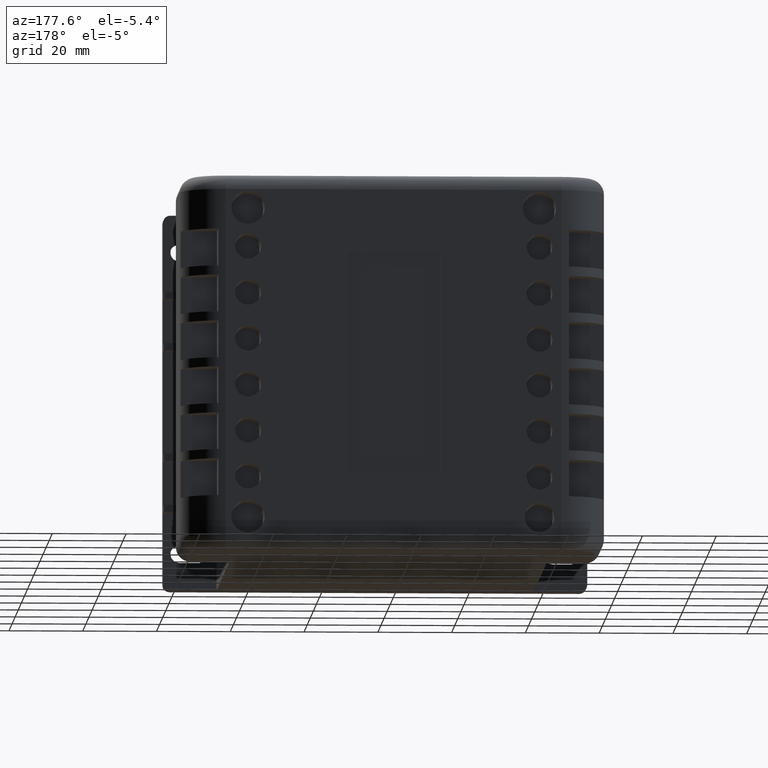
[diagram: clean part render]
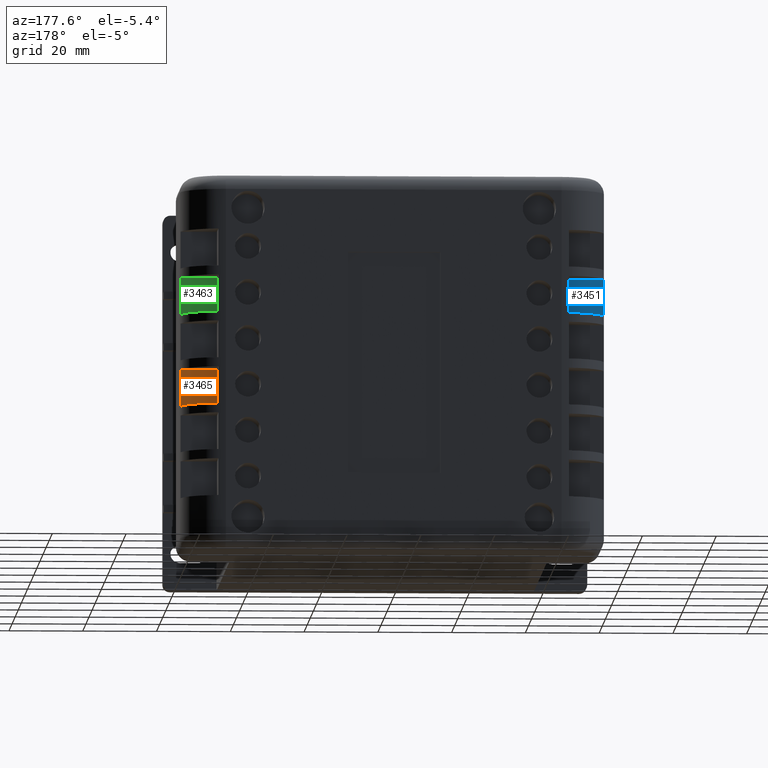
[diagram: same view with three faces highlighted in distinct colors, each labeled with its STEP entity id]
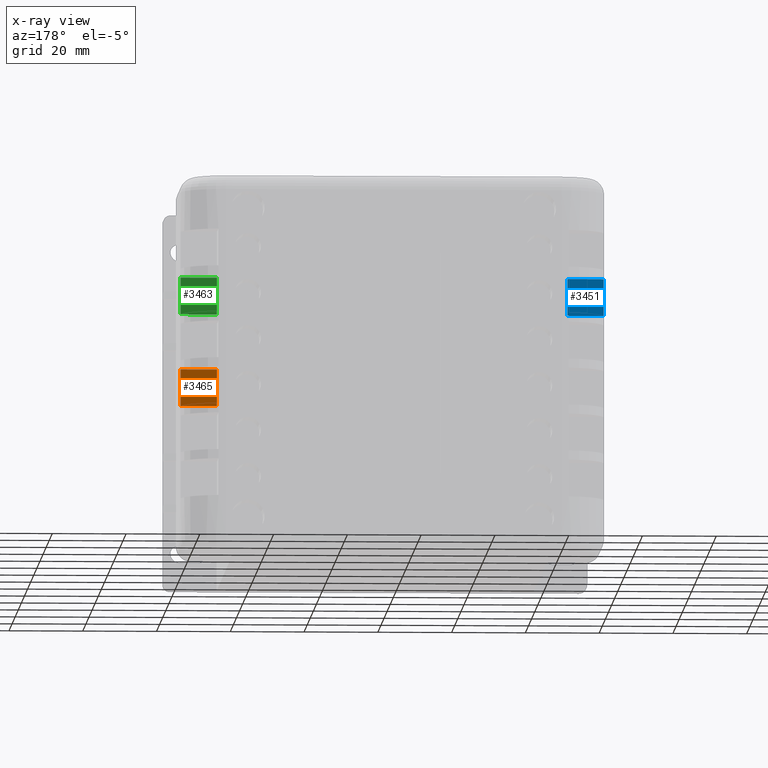
[diagram: x-ray of the same camera — body ghosted, the three highlighted faces saturated]
A machine part, auxiliary view with three faces highlighted in distinct colors.
The next image is the same camera in x-ray (body ghosted, the three faces saturated) — at least one of them is partly hidden behind the body in this view.
Their STEP definitions:

[orange] entity #3465 — the highlighted planar face has unit normal (0, -1, 0).
#426=FACE_OUTER_BOUND('',#666,.T.);
#666=EDGE_LOOP('',(#2857,#2858,#2859,#2860));
#968=LINE('',#5713,#1288);
#986=LINE('',#5759,#1306);
#987=LINE('',#5761,#1307);
#988=LINE('',#5762,#1308);
#1288=VECTOR('',#4771,10.);
#1306=VECTOR('',#4813,10.);
#1307=VECTOR('',#4814,10.);
#1308=VECTOR('',#4815,10.);
#1589=VERTEX_POINT('',#5710);
#1590=VERTEX_POINT('',#5712);
#1606=VERTEX_POINT('',#5758);
#1607=VERTEX_POINT('',#5760);
#2007=EDGE_CURVE('',#1589,#1590,#968,.T.);
#2030=EDGE_CURVE('',#1606,#1589,#986,.T.);
#2031=EDGE_CURVE('',#1607,#1606,#987,.T.);
#2032=EDGE_CURVE('',#1590,#1607,#988,.T.);
#2857=ORIENTED_EDGE('',*,*,#2007,.F.);
#2858=ORIENTED_EDGE('',*,*,#2030,.F.);
#2859=ORIENTED_EDGE('',*,*,#2031,.F.);
#2860=ORIENTED_EDGE('',*,*,#2032,.F.);
#3054=PLANE('',#3884);
#3465=ADVANCED_FACE('',(#426),#3054,.F.);
#3884=AXIS2_PLACEMENT_3D('',#5757,#4811,#4812);
#4771=DIRECTION('',(3.483052626275E-16,0.,1.));
#4811=DIRECTION('center_axis',(0.,-1.,0.));
#4812=DIRECTION('ref_axis',(0.,0.,-1.));
#4813=DIRECTION('',(1.,0.,0.));
#4814=DIRECTION('',(4.44089209850063E-16,0.,-1.));
#4815=DIRECTION('',(-1.,0.,0.));
#5710=CARTESIAN_POINT('',(-0.167840433800752,27.,39.75));
#5712=CARTESIAN_POINT('',(-0.167840433800748,27.,49.75));
#5713=CARTESIAN_POINT('',(-0.167840433800739,27.,76.5));
#5757=CARTESIAN_POINT('Origin',(-5.,27.,44.75));
#5758=CARTESIAN_POINT('',(-10.,27.,39.75));
#5759=CARTESIAN_POINT('',(1.61599129139884E-14,27.,39.75));
#5760=CARTESIAN_POINT('',(-10.,27.,49.75));
#5761=CARTESIAN_POINT('',(-10.,27.,39.75));
#5762=CARTESIAN_POINT('',(-10.,27.,49.75));

[blue] entity #3451 — the highlighted planar face has unit normal (0, 1, 0).
#412=FACE_OUTER_BOUND('',#646,.T.);
#646=EDGE_LOOP('',(#2783,#2784,#2785,#2786));
#924=LINE('',#5591,#1244);
#940=LINE('',#5636,#1260);
#942=LINE('',#5639,#1262);
#958=LINE('',#5673,#1278);
#1244=VECTOR('',#4649,10.);
#1260=VECTOR('',#4687,10.);
#1262=VECTOR('',#4691,10.);
#1278=VECTOR('',#4731,10.);
#1548=VERTEX_POINT('',#5584);
#1551=VERTEX_POINT('',#5589);
#1568=VERTEX_POINT('',#5633);
#1569=VERTEX_POINT('',#5635);
#1950=EDGE_CURVE('',#1551,#1548,#924,.T.);
#1972=EDGE_CURVE('',#1569,#1568,#940,.T.);
#1974=EDGE_CURVE('',#1568,#1548,#942,.T.);
#1990=EDGE_CURVE('',#1551,#1569,#958,.T.);
#2783=ORIENTED_EDGE('',*,*,#1950,.F.);
#2784=ORIENTED_EDGE('',*,*,#1990,.T.);
#2785=ORIENTED_EDGE('',*,*,#1972,.T.);
#2786=ORIENTED_EDGE('',*,*,#1974,.T.);
#3041=PLANE('',#3858);
#3451=ADVANCED_FACE('',(#412),#3041,.T.);
#3858=AXIS2_PLACEMENT_3D('',#5674,#4732,#4733);
#4649=DIRECTION('',(-3.483052626275E-16,0.,-1.));
#4687=DIRECTION('',(-6.96610525255E-16,0.,-1.));
#4691=DIRECTION('',(-1.,0.,6.96610525255E-16));
#4731=DIRECTION('',(1.,0.,-6.96610525255E-16));
#4732=DIRECTION('center_axis',(0.,1.,0.));
#4733=DIRECTION('ref_axis',(-6.96610525255E-16,0.,-1.));
#5584=CARTESIAN_POINT('',(-114.832159566199,27.,64.7500000000001));
#5589=CARTESIAN_POINT('',(-114.832159566199,27.,74.7500000000001));
#5591=CARTESIAN_POINT('',(-114.832159566199,27.,25.5));
#5633=CARTESIAN_POINT('',(-105.,27.,64.75));
#5635=CARTESIAN_POINT('',(-105.,27.,74.75));
#5636=CARTESIAN_POINT('',(-105.,27.,64.75));
#5639=CARTESIAN_POINT('',(-115.,27.,64.7500000000001));
#5673=CARTESIAN_POINT('',(-105.,27.,74.75));
#5674=CARTESIAN_POINT('Origin',(-110.,27.,69.7500000000001));

[green] entity #3463 — the highlighted planar face has unit normal (0, -1, 0).
#424=FACE_OUTER_BOUND('',#664,.T.);
#664=EDGE_LOOP('',(#2850,#2851,#2852,#2853));
#966=LINE('',#5705,#1286);
#982=LINE('',#5751,#1302);
#983=LINE('',#5753,#1303);
#984=LINE('',#5754,#1304);
#1286=VECTOR('',#4765,10.);
#1302=VECTOR('',#4805,10.);
#1303=VECTOR('',#4806,10.);
#1304=VECTOR('',#4807,10.);
#1585=VERTEX_POINT('',#5702);
#1586=VERTEX_POINT('',#5704);
#1604=VERTEX_POINT('',#5750);
#1605=VERTEX_POINT('',#5752);
#2003=EDGE_CURVE('',#1585,#1586,#966,.T.);
#2026=EDGE_CURVE('',#1604,#1585,#982,.T.);
#2027=EDGE_CURVE('',#1605,#1604,#983,.T.);
#2028=EDGE_CURVE('',#1586,#1605,#984,.T.);
#2850=ORIENTED_EDGE('',*,*,#2003,.F.);
#2851=ORIENTED_EDGE('',*,*,#2026,.F.);
#2852=ORIENTED_EDGE('',*,*,#2027,.F.);
#2853=ORIENTED_EDGE('',*,*,#2028,.F.);
#3052=PLANE('',#3882);
#3463=ADVANCED_FACE('',(#424),#3052,.F.);
#3882=AXIS2_PLACEMENT_3D('',#5749,#4803,#4804);
#4765=DIRECTION('',(3.483052626275E-16,0.,1.));
#4803=DIRECTION('center_axis',(0.,-1.,0.));
#4804=DIRECTION('ref_axis',(0.,0.,-1.));
#4805=DIRECTION('',(1.,0.,0.));
#4806=DIRECTION('',(0.,0.,-1.));
#4807=DIRECTION('',(-1.,0.,0.));
#5702=CARTESIAN_POINT('',(-0.167840433800743,27.,64.75));
#5704=CARTESIAN_POINT('',(-0.167840433800739,27.,74.75));
#5705=CARTESIAN_POINT('',(-0.167840433800739,27.,76.5));
#5749=CARTESIAN_POINT('Origin',(-4.99999999999998,27.,69.75));
#5750=CARTESIAN_POINT('',(-9.99999999999998,27.,64.75));
#5751=CARTESIAN_POINT('',(2.1094237467878E-14,27.,64.75));
#5752=CARTESIAN_POINT('',(-9.99999999999998,27.,74.75));
#5753=CARTESIAN_POINT('',(-9.99999999999998,27.,64.75));
#5754=CARTESIAN_POINT('',(-9.99999999999998,27.,74.75));